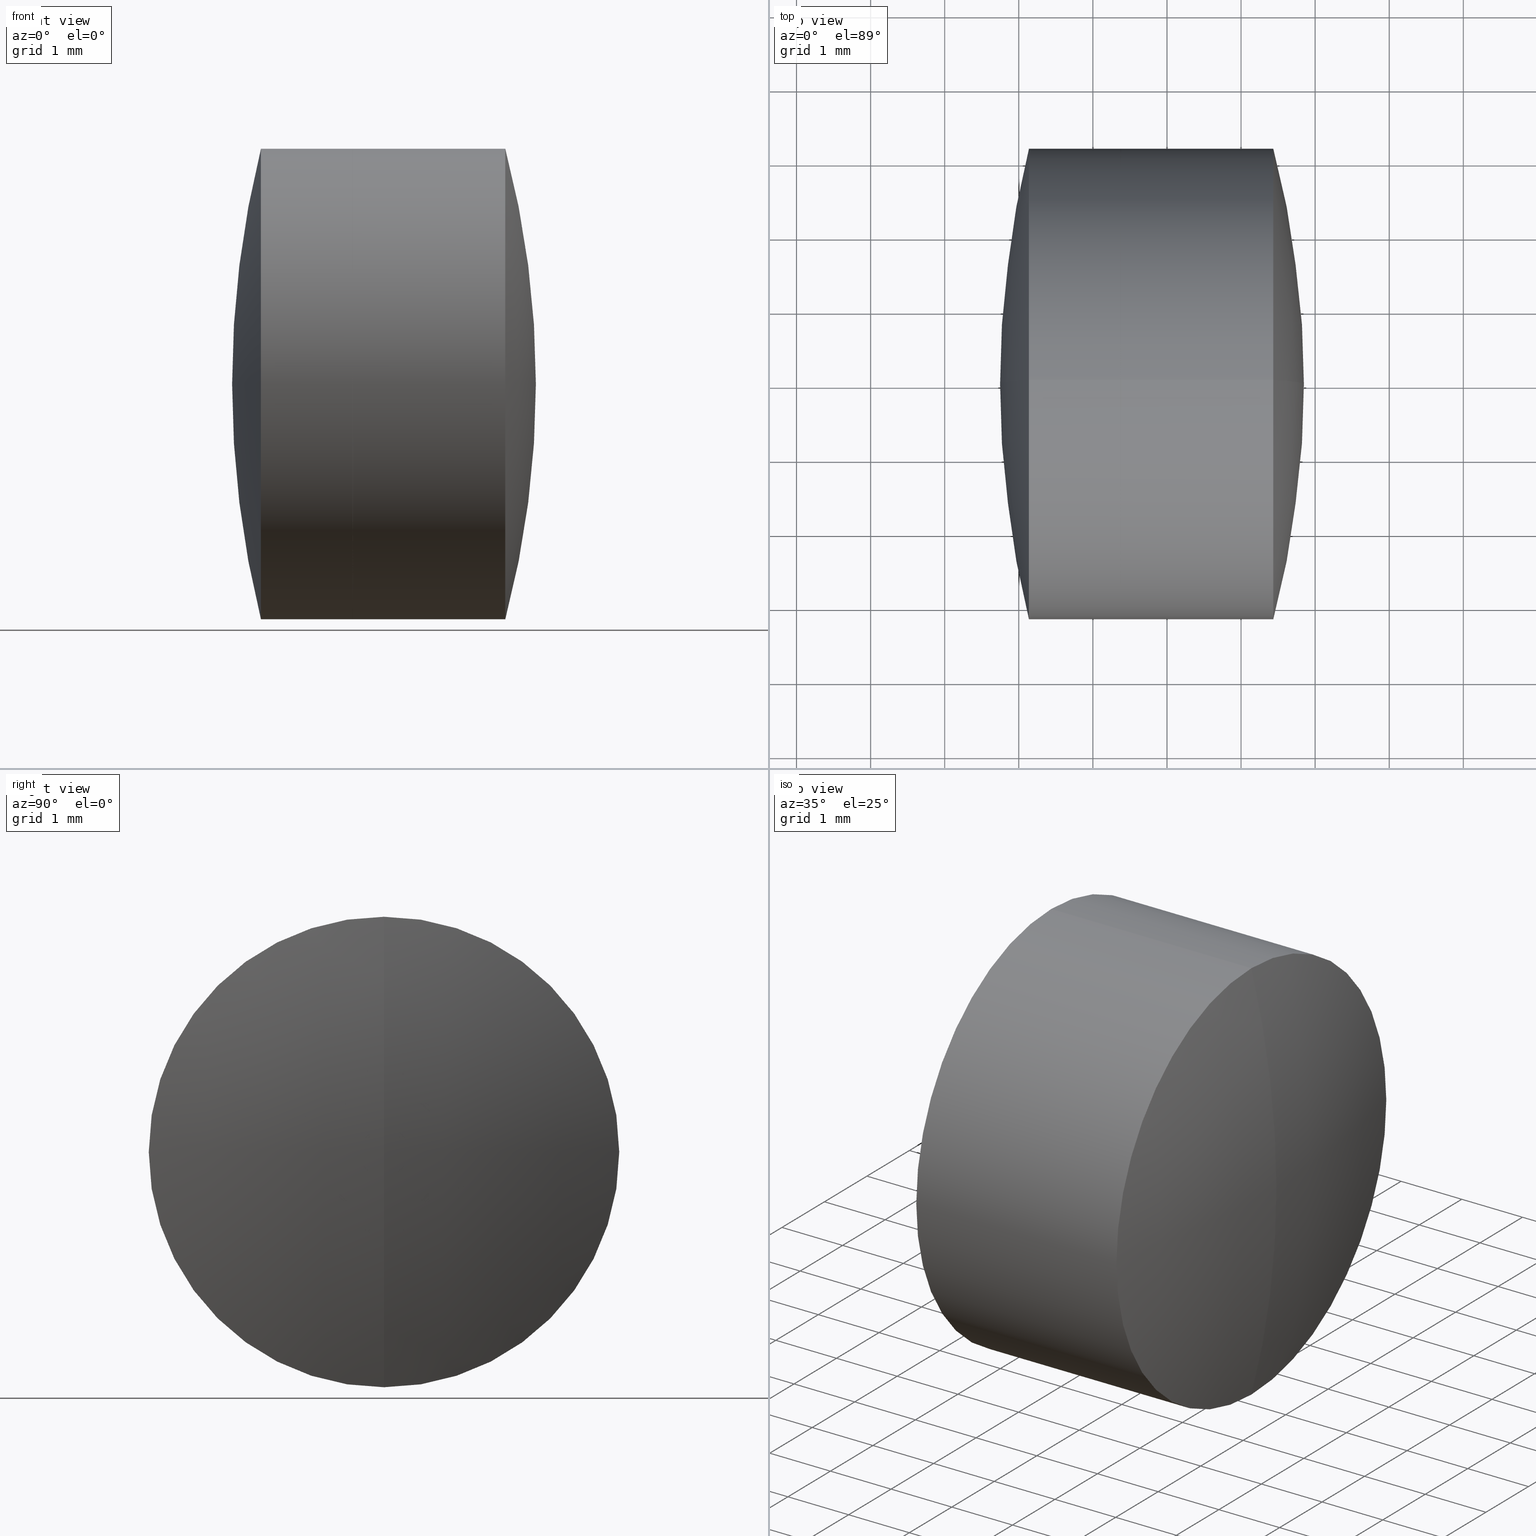
[diagram: canonical four-view strip — front | top / right | iso, engineering-drawing reading convention]
A machine part, canonical four-view strip (front | top / right | iso — engineering-drawing reading convention). The complete STEP part file that produces these views, byte-faithful:
ISO-10303-21;
HEADER;
FILE_DESCRIPTION (( 'STEP AP214' ),
    '1' );
FILE_NAME ('145148.STEP',
    '2019-06-06T03:25:14',
    ( 'user' ),
    ( '΢���й�' ),
    'SwSTEP 2.0',
    'SolidWorks 2016',
    '' );
FILE_SCHEMA (( 'AUTOMOTIVE_DESIGN' ));
ENDSEC;

DATA;
#1 = DIRECTION ( 'NONE',  ( -1.000000000000000000, -0.0000000000000000000, -0.0000000000000000000 ) ) ;
#2 = ORIENTED_EDGE ( 'NONE', *, *, #78, .T. ) ;
#3 = FACE_OUTER_BOUND ( 'NONE', #299, .T. ) ;
#4 = DIRECTION ( 'NONE',  ( 0.0000000000000000000, 1.224646799147353200E-016, -1.000000000000000000 ) ) ;
#5 = STYLED_ITEM ( 'NONE', ( #196 ), #304 ) ;
#6 = DIRECTION ( 'NONE',  ( 0.0000000000000000000, 0.0000000000000000000, -1.000000000000000000 ) ) ;
#7 =( NAMED_UNIT ( * ) SI_UNIT ( $, .STERADIAN. ) SOLID_ANGLE_UNIT ( ) );
#8 = ORIENTED_EDGE ( 'NONE', *, *, #219, .F. ) ;
#9 = PRODUCT_RELATED_PRODUCT_CATEGORY ( 'part', '', ( #214 ) ) ;
#10 = SURFACE_STYLE_FILL_AREA ( #305 ) ;
#11 =( GEOMETRIC_REPRESENTATION_CONTEXT ( 3 ) GLOBAL_UNCERTAINTY_ASSIGNED_CONTEXT ( ( #194 ) ) GLOBAL_UNIT_ASSIGNED_CONTEXT ( ( #347, #16, #185 ) ) REPRESENTATION_CONTEXT ( 'NONE', 'WORKASPACE' ) );
#12 = CARTESIAN_POINT ( 'NONE',  ( 2.377028588039097600, 0.0000000000000000000, 0.0000000000000000000 ) ) ;
#13 = DIRECTION ( 'NONE',  ( 0.0000000000000000000, 0.0000000000000000000, 1.000000000000000000 ) ) ;
#14 = SURFACE_STYLE_FILL_AREA ( #254 ) ;
#15 = UNCERTAINTY_MEASURE_WITH_UNIT (LENGTH_MEASURE( 1.000000000000000100E-005 ), #278, 'distance_accuracy_value', 'NONE');
#16 =( NAMED_UNIT ( * ) PLANE_ANGLE_UNIT ( ) SI_UNIT ( $, .RADIAN. ) );
#17 = ORIENTED_EDGE ( 'NONE', *, *, #302, .F. ) ;
#18 = AXIS2_PLACEMENT_3D ( 'NONE', #193, #184, #30 ) ;
#19 = ORIENTED_EDGE ( 'NONE', *, *, #106, .F. ) ;
#20 = EDGE_CURVE ( 'NONE', #328, #230, #121, .T. ) ;
#21 = CARTESIAN_POINT ( 'NONE',  ( 2.377028588039098900, 0.0000000000000000000, 0.0000000000000000000 ) ) ;
#22 = AXIS2_PLACEMENT_3D ( 'NONE', #153, #218, #152 ) ;
#23 = CYLINDRICAL_SURFACE ( 'NONE', #150, 3.174999999999998000 ) ;
#24 = DIRECTION ( 'NONE',  ( 0.0000000000000000000, 0.0000000000000000000, 1.000000000000000000 ) ) ;
#25 = DIRECTION ( 'NONE',  ( 0.0000000000000000000, 1.000000000000000000, -0.0000000000000000000 ) ) ;
#26 = ORIENTED_EDGE ( 'NONE', *, *, #290, .T. ) ;
#27 = EDGE_CURVE ( 'NONE', #258, #110, #319, .T. ) ;
#28 = SURFACE_SIDE_STYLE ('',( #10 ) ) ;
#29 = AXIS2_PLACEMENT_3D ( 'NONE', #12, #311, #42 ) ;
#30 = DIRECTION ( 'NONE',  ( 0.0000000000000000000, 0.0000000000000000000, -1.000000000000000000 ) ) ;
#31 = CARTESIAN_POINT ( 'NONE',  ( -7.572040515916890900, 0.0000000000000000000, 0.0000000000000000000 ) ) ;
#32 = SPHERICAL_SURFACE ( 'NONE', #310, 4.889999999999999700 ) ;
#33 = CARTESIAN_POINT ( 'NONE',  ( -0.5519199926577972300, 3.888253587292844600E-016, -3.174999999999998000 ) ) ;
#34 = PRODUCT_DEFINITION_FORMATION_WITH_SPECIFIED_SOURCE ( '�κ�', '', #214, .NOT_KNOWN. ) ;
#35 = FACE_OUTER_BOUND ( 'NONE', #129, .T. ) ;
#36 = ADVANCED_FACE ( 'NONE', ( #57 ), #182, .T. ) ;
#37 = DIRECTION ( 'NONE',  ( 0.0000000000000000000, 0.0000000000000000000, 1.000000000000000000 ) ) ;
#38 = FACE_OUTER_BOUND ( 'NONE', #337, .T. ) ;
#39 = CARTESIAN_POINT ( 'NONE',  ( 2.377028588039098900, 0.0000000000000000000, 0.0000000000000000000 ) ) ;
#40 = AXIS2_PLACEMENT_3D ( 'NONE', #269, #253, #248 ) ;
#41 = CARTESIAN_POINT ( 'NONE',  ( -0.8160621761658039000, 0.0000000000000000000, 0.0000000000000000000 ) ) ;
#42 = DIRECTION ( 'NONE',  ( 0.0000000000000000000, 0.0000000000000000000, 1.000000000000000000 ) ) ;
#43 = SURFACE_SIDE_STYLE ('',( #14 ) ) ;
#44 = ORIENTED_EDGE ( 'NONE', *, *, #302, .T. ) ;
#45 = ORIENTED_EDGE ( 'NONE', *, *, #245, .F. ) ;
#46 = DIRECTION ( 'NONE',  ( 0.0000000000000000000, 0.0000000000000000000, 1.000000000000000000 ) ) ;
#47 = AXIS2_PLACEMENT_3D ( 'NONE', #320, #179, #80 ) ;
#48 = EDGE_CURVE ( 'NONE', #178, #230, #75, .T. ) ;
#49 = ORIENTED_EDGE ( 'NONE', *, *, #217, .T. ) ;
#50 = CIRCLE ( 'NONE', #22, 4.889999999999999700 ) ;
#51 = DIRECTION ( 'NONE',  ( 0.0000000000000000000, 1.000000000000000000, 0.0000000000000000000 ) ) ;
#52 = CIRCLE ( 'NONE', #66, 3.174999999999998500 ) ;
#53 = ORIENTED_EDGE ( 'NONE', *, *, #154, .F. ) ;
#54 = DIRECTION ( 'NONE',  ( 0.0000000000000000000, 0.0000000000000000000, 1.000000000000000000 ) ) ;
#55 = DIRECTION ( 'NONE',  ( 0.0000000000000000000, 0.0000000000000000000, 1.000000000000000000 ) ) ;
#56 = ORIENTED_EDGE ( 'NONE', *, *, #134, .T. ) ;
#57 = FACE_OUTER_BOUND ( 'NONE', #215, .T. ) ;
#58 = EDGE_CURVE ( 'NONE', #145, #207, #192, .T. ) ;
#59 = CARTESIAN_POINT ( 'NONE',  ( -0.5519199926577972300, 0.0000000000000000000, 0.0000000000000000000 ) ) ;
#60 = CARTESIAN_POINT ( 'NONE',  ( 4.435281208764261700, 0.0000000000000000000, 0.0000000000000000000 ) ) ;
#61 = ORIENTED_EDGE ( 'NONE', *, *, #219, .T. ) ;
#62 = COLOUR_RGB ( '',1.000000000000000000, 1.000000000000000000, 1.000000000000000000 ) ;
#63 = SURFACE_STYLE_USAGE ( .BOTH. , #43 ) ;
#64 = ORIENTED_EDGE ( 'NONE', *, *, #27, .T. ) ;
#65 = PRESENTATION_STYLE_ASSIGNMENT (( #322 ) ) ;
#66 = AXIS2_PLACEMENT_3D ( 'NONE', #39, #89, #147 ) ;
#67 = DIRECTION ( 'NONE',  ( -1.000000000000000000, -0.0000000000000000000, -0.0000000000000000000 ) ) ;
#68 = ADVANCED_FACE ( 'NONE', ( #95 ), #263, .F. ) ;
#69 = CARTESIAN_POINT ( 'NONE',  ( -7.572040515916890900, 0.0000000000000000000, 0.0000000000000000000 ) ) ;
#70 = CARTESIAN_POINT ( 'NONE',  ( 2.377028588039097600, 0.0000000000000000000, 3.174999999999999800 ) ) ;
#71 = ORIENTED_EDGE ( 'NONE', *, *, #58, .F. ) ;
#72 = PRODUCT_DEFINITION ( 'δ֪', '', #34, #327 ) ;
#73 = DIRECTION ( 'NONE',  ( 0.0000000000000000000, 1.000000000000000000, 0.0000000000000000000 ) ) ;
#74 = ORIENTED_EDGE ( 'NONE', *, *, #245, .T. ) ;
#75 = CIRCLE ( 'NONE', #104, 4.889999999999999700 ) ;
#76 = MANIFOLD_SOLID_BREP ( '��ת2', #289 ) ;
#77 = AXIS2_PLACEMENT_3D ( 'NONE', #59, #167, #83 ) ;
#78 = EDGE_CURVE ( 'NONE', #230, #328, #135, .T. ) ;
#79 = ORIENTED_EDGE ( 'NONE', *, *, #134, .F. ) ;
#80 = DIRECTION ( 'NONE',  ( 0.0000000000000000000, 0.0000000000000000000, 1.000000000000000000 ) ) ;
#81 = DIRECTION ( 'NONE',  ( 0.0000000000000000000, 0.0000000000000000000, 1.000000000000000000 ) ) ;
#82 = AXIS2_PLACEMENT_3D ( 'NONE', #31, #210, #4 ) ;
#83 = DIRECTION ( 'NONE',  ( 0.0000000000000000000, 0.0000000000000000000, 1.000000000000000000 ) ) ;
#84 = ORIENTED_EDGE ( 'NONE', *, *, #27, .F. ) ;
#85 = ORIENTED_EDGE ( 'NONE', *, *, #20, .F. ) ;
#86 = CARTESIAN_POINT ( 'NONE',  ( 4.435281208764261700, 0.0000000000000000000, -3.175000000000001600 ) ) ;
#87 = ADVANCED_FACE ( 'NONE', ( #3 ), #331, .T. ) ;
#88 = CARTESIAN_POINT ( 'NONE',  ( 2.377028588039097600, 3.888253587292846100E-016, -3.174999999999999800 ) ) ;
#89 = DIRECTION ( 'NONE',  ( -1.000000000000000000, -0.0000000000000000000, -0.0000000000000000000 ) ) ;
#90 = VECTOR ( 'NONE', #344, 1000.000000000000000 ) ;
#91 = AXIS2_PLACEMENT_3D ( 'NONE', #257, #209, #204 ) ;
#92 = CARTESIAN_POINT ( 'NONE',  ( -0.8160621761658039000, 3.888253587292846100E-016, -3.174999999999999800 ) ) ;
#93 = CARTESIAN_POINT ( 'NONE',  ( 1.137008304801841300, 0.0000000000000000000, 0.0000000000000000000 ) ) ;
#94 = EDGE_LOOP ( 'NONE', ( #284, #49, #203 ) ) ;
#95 = FACE_OUTER_BOUND ( 'NONE', #281, .T. ) ;
#96 = MECHANICAL_DESIGN_GEOMETRIC_PRESENTATION_REPRESENTATION (  '', ( #131 ), #117 ) ;
#97 = CIRCLE ( 'NONE', #161, 3.174999999999999800 ) ;
#98 = CARTESIAN_POINT ( 'NONE',  ( 1.137008304801841300, 0.0000000000000000000, 0.0000000000000000000 ) ) ;
#99 = PRESENTATION_LAYER_ASSIGNMENT (  '', '', ( #131 ) ) ;
#100 = CARTESIAN_POINT ( 'NONE',  ( 4.435281208764261700, 0.0000000000000000000, 0.0000000000000000000 ) ) ;
#101 = VERTEX_POINT ( 'NONE', #125 ) ;
#102 = CIRCLE ( 'NONE', #282, 12.42000000000000000 ) ;
#103 = FACE_OUTER_BOUND ( 'NONE', #280, .T. ) ;
#104 = AXIS2_PLACEMENT_3D ( 'NONE', #301, #243, #303 ) ;
#105 = DIRECTION ( 'NONE',  ( 0.0000000000000000000, 1.000000000000000000, 0.0000000000000000000 ) ) ;
#106 = EDGE_CURVE ( 'NONE', #110, #330, #300, .T. ) ;
#107 =( LENGTH_UNIT ( ) NAMED_UNIT ( * ) SI_UNIT ( .MILLI., .METRE. ) );
#108 = DIRECTION ( 'NONE',  ( -0.0000000000000000000, -1.000000000000000000, -0.0000000000000000000 ) ) ;
#109 = AXIS2_PLACEMENT_3D ( 'NONE', #208, #51, #55 ) ;
#110 = VERTEX_POINT ( 'NONE', #190 ) ;
#111 = DIRECTION ( 'NONE',  ( 0.0000000000000000000, 0.0000000000000000000, -1.000000000000000000 ) ) ;
#112 = VECTOR ( 'NONE', #216, 1000.000000000000000 ) ;
#113 = DIRECTION ( 'NONE',  ( 0.0000000000000000000, 0.0000000000000000000, 1.000000000000000000 ) ) ;
#114 = DIRECTION ( 'NONE',  ( -1.000000000000000000, -0.0000000000000000000, -0.0000000000000000000 ) ) ;
#115 =( NAMED_UNIT ( * ) SI_UNIT ( $, .STERADIAN. ) SOLID_ANGLE_UNIT ( ) );
#116 = ORIENTED_EDGE ( 'NONE', *, *, #143, .F. ) ;
#117 =( GEOMETRIC_REPRESENTATION_CONTEXT ( 3 ) GLOBAL_UNCERTAINTY_ASSIGNED_CONTEXT ( ( #249 ) ) GLOBAL_UNIT_ASSIGNED_CONTEXT ( ( #309, #220, #268 ) ) REPRESENTATION_CONTEXT ( 'NONE', 'WORKASPACE' ) );
#118 = VERTEX_POINT ( 'NONE', #137 ) ;
#119 = DIRECTION ( 'NONE',  ( -1.000000000000000000, -0.0000000000000000000, -0.0000000000000000000 ) ) ;
#120 = EDGE_LOOP ( 'NONE', ( #266, #56, #148, #225 ) ) ;
#121 = CIRCLE ( 'NONE', #343, 3.174999999999999800 ) ;
#122 = STYLED_ITEM ( 'NONE', ( #65 ), #76 ) ;
#123 = ORIENTED_EDGE ( 'NONE', *, *, #48, .F. ) ;
#124 = APPLICATION_PROTOCOL_DEFINITION ( 'draft international standard', 'automotive_design', 1998, #265 ) ;
#125 = CARTESIAN_POINT ( 'NONE',  ( 3.547959484083109200, 0.0000000000000000000, -2.291877328756672900E-016 ) ) ;
#126 = LINE ( 'NONE', #260, #174 ) ;
#127 = CARTESIAN_POINT ( 'NONE',  ( 13.89795948408311000, 0.0000000000000000000, -4.034842405312186600E-017 ) ) ;
#128 = SURFACE_SIDE_STYLE ('',( #324 ) ) ;
#129 = EDGE_LOOP ( 'NONE', ( #8, #262, #85 ) ) ;
#130 = ORIENTED_EDGE ( 'NONE', *, *, #205, .T. ) ;
#131 = STYLED_ITEM ( 'NONE', ( #312 ), #166 ) ;
#132 = DIRECTION ( 'NONE',  ( 0.0000000000000000000, 0.0000000000000000000, -1.000000000000000000 ) ) ;
#133 = SPHERICAL_SURFACE ( 'NONE', #202, 12.42000000000000000 ) ;
#134 = EDGE_CURVE ( 'NONE', #330, #110, #285, .T. ) ;
#135 = CIRCLE ( 'NONE', #29, 3.174999999999999800 ) ;
#136 = FILL_AREA_STYLE_COLOUR ( '', #171 ) ;
#137 = CARTESIAN_POINT ( 'NONE',  ( 2.377028588039098900, 0.0000000000000000000, -3.174999999999998500 ) ) ;
#138 = DIRECTION ( 'NONE',  ( 0.0000000000000000000, 1.000000000000000000, -0.0000000000000000000 ) ) ;
#139 = AXIS2_PLACEMENT_3D ( 'NONE', #195, #25, #46 ) ;
#140 = EDGE_CURVE ( 'NONE', #330, #118, #273, .T. ) ;
#141 = FILL_AREA_STYLE ('',( #136 ) ) ;
#142 = ORIENTED_EDGE ( 'NONE', *, *, #321, .F. ) ;
#143 = EDGE_CURVE ( 'NONE', #110, #198, #126, .T. ) ;
#144 = DIRECTION ( 'NONE',  ( 0.0000000000000000000, 0.0000000000000000000, 1.000000000000000000 ) ) ;
#145 = VERTEX_POINT ( 'NONE', #339 ) ;
#146 = MECHANICAL_DESIGN_GEOMETRIC_PRESENTATION_REPRESENTATION (  '', ( #5 ), #11 ) ;
#147 = DIRECTION ( 'NONE',  ( 0.0000000000000000000, 0.0000000000000000000, 1.000000000000000000 ) ) ;
#148 = ORIENTED_EDGE ( 'NONE', *, *, #143, .T. ) ;
#149 = DIRECTION ( 'NONE',  ( -1.000000000000000000, -0.0000000000000000000, -0.0000000000000000000 ) ) ;
#150 = AXIS2_PLACEMENT_3D ( 'NONE', #288, #163, #24 ) ;
#151 = CARTESIAN_POINT ( 'NONE',  ( 2.377028588039097600, 0.0000000000000000000, 0.0000000000000000000 ) ) ;
#152 = DIRECTION ( 'NONE',  ( 0.0000000000000000000, 1.224646799147353200E-016, -1.000000000000000000 ) ) ;
#153 = CARTESIAN_POINT ( 'NONE',  ( -1.342040515916890000, 0.0000000000000000000, 7.023840951586055500E-017 ) ) ;
#154 = EDGE_CURVE ( 'NONE', #101, #198, #50, .T. ) ;
#155 = CIRCLE ( 'NONE', #293, 13.15000000000000000 ) ;
#156 = PRESENTATION_LAYER_ASSIGNMENT (  '', '', ( #5 ) ) ;
#157 = CARTESIAN_POINT ( 'NONE',  ( -1.342040515916890000, 0.0000000000000000000, 7.023840951586055500E-017 ) ) ;
#158 = ADVANCED_FACE ( 'NONE', ( #241 ), #252, .T. ) ;
#159 = ORIENTED_EDGE ( 'NONE', *, *, #78, .F. ) ;
#160 = ADVANCED_FACE ( 'NONE', ( #103 ), #164, .T. ) ;
#161 = AXIS2_PLACEMENT_3D ( 'NONE', #93, #119, #13 ) ;
#162 = DIRECTION ( 'NONE',  ( -1.000000000000000000, -0.0000000000000000000, -0.0000000000000000000 ) ) ;
#163 = DIRECTION ( 'NONE',  ( -1.000000000000000000, -0.0000000000000000000, -0.0000000000000000000 ) ) ;
#164 = CYLINDRICAL_SURFACE ( 'NONE', #47, 3.174999999999999800 ) ;
#165 = DIRECTION ( 'NONE',  ( -0.0000000000000000000, -1.000000000000000000, -0.0000000000000000000 ) ) ;
#166 = ADVANCED_BREP_SHAPE_REPRESENTATION ( '145148', ( #304, #76, #40 ), #169 ) ;
#167 = DIRECTION ( 'NONE',  ( -1.000000000000000000, -0.0000000000000000000, -0.0000000000000000000 ) ) ;
#168 = FACE_OUTER_BOUND ( 'NONE', #186, .T. ) ;
#169 =( GEOMETRIC_REPRESENTATION_CONTEXT ( 3 ) GLOBAL_UNCERTAINTY_ASSIGNED_CONTEXT ( ( #15 ) ) GLOBAL_UNIT_ASSIGNED_CONTEXT ( ( #278, #173, #7 ) ) REPRESENTATION_CONTEXT ( 'NONE', 'WORKASPACE' ) );
#170 = ORIENTED_EDGE ( 'NONE', *, *, #346, .T. ) ;
#171 = COLOUR_RGB ( '',1.000000000000000000, 1.000000000000000000, 1.000000000000000000 ) ;
#172 = CARTESIAN_POINT ( 'NONE',  ( 1.137008304801841600, 3.888253587292847100E-016, -3.175000000000000700 ) ) ;
#173 =( NAMED_UNIT ( * ) PLANE_ANGLE_UNIT ( ) SI_UNIT ( $, .RADIAN. ) );
#174 = VECTOR ( 'NONE', #67, 1000.000000000000000 ) ;
#175 = AXIS2_PLACEMENT_3D ( 'NONE', #98, #114, #180 ) ;
#176 = DIRECTION ( 'NONE',  ( 0.0000000000000000000, 0.0000000000000000000, 1.000000000000000000 ) ) ;
#177 = CIRCLE ( 'NONE', #139, 4.889999999999999700 ) ;
#178 = VERTEX_POINT ( 'NONE', #222 ) ;
#179 = DIRECTION ( 'NONE',  ( -1.000000000000000000, -0.0000000000000000000, -0.0000000000000000000 ) ) ;
#180 = DIRECTION ( 'NONE',  ( 0.0000000000000000000, 0.0000000000000000000, 1.000000000000000000 ) ) ;
#181 = ORIENTED_EDGE ( 'NONE', *, *, #292, .T. ) ;
#182 = CYLINDRICAL_SURFACE ( 'NONE', #77, 3.174999999999998000 ) ;
#183 = AXIS2_PLACEMENT_3D ( 'NONE', #157, #332, #6 ) ;
#184 = DIRECTION ( 'NONE',  ( -0.0000000000000000000, -1.000000000000000000, -0.0000000000000000000 ) ) ;
#185 =( NAMED_UNIT ( * ) SI_UNIT ( $, .STERADIAN. ) SOLID_ANGLE_UNIT ( ) );
#186 = EDGE_LOOP ( 'NONE', ( #53, #44, #26 ) ) ;
#187 = AXIS2_PLACEMENT_3D ( 'NONE', #240, #105, #113 ) ;
#188 = DIRECTION ( 'NONE',  ( -1.000000000000000000, -0.0000000000000000000, -0.0000000000000000000 ) ) ;
#189 = ADVANCED_FACE ( 'NONE', ( #38 ), #233, .T. ) ;
#190 = CARTESIAN_POINT ( 'NONE',  ( 4.435281208764261700, -3.888253587292849000E-016, 3.175000000000001600 ) ) ;
#191 = ORIENTED_EDGE ( 'NONE', *, *, #106, .T. ) ;
#192 = CIRCLE ( 'NONE', #175, 3.174999999999999800 ) ;
#193 = CARTESIAN_POINT ( 'NONE',  ( -1.342040515916890000, 0.0000000000000000000, 7.023840951586055500E-017 ) ) ;
#194 = UNCERTAINTY_MEASURE_WITH_UNIT (LENGTH_MEASURE( 1.000000000000000100E-005 ), #347, 'distance_accuracy_value', 'NONE');
#195 = CARTESIAN_POINT ( 'NONE',  ( -1.342040515916890000, 0.0000000000000000000, 7.023840951586055500E-017 ) ) ;
#196 = PRESENTATION_STYLE_ASSIGNMENT (( #279 ) ) ;
#197 = CARTESIAN_POINT ( 'NONE',  ( 13.89795948408311000, 0.0000000000000000000, -4.034842405312186600E-017 ) ) ;
#198 = VERTEX_POINT ( 'NONE', #244 ) ;
#199 = DIRECTION ( 'NONE',  ( 0.0000000000000000000, 1.000000000000000000, 0.0000000000000000000 ) ) ;
#200 = CARTESIAN_POINT ( 'NONE',  ( 4.847959484083109100, 0.0000000000000000000, -7.605056622705063600E-016 ) ) ;
#201 = EDGE_LOOP ( 'NONE', ( #123, #61, #159 ) ) ;
#202 = AXIS2_PLACEMENT_3D ( 'NONE', #307, #165, #132 ) ;
#203 = ORIENTED_EDGE ( 'NONE', *, *, #264, .T. ) ;
#204 = DIRECTION ( 'NONE',  ( 0.0000000000000000000, -1.224646799147353200E-016, 1.000000000000000000 ) ) ;
#205 = EDGE_CURVE ( 'NONE', #198, #118, #315, .T. ) ;
#206 = DIRECTION ( 'NONE',  ( 0.0000000000000000000, 0.0000000000000000000, 1.000000000000000000 ) ) ;
#207 = VERTEX_POINT ( 'NONE', #172 ) ;
#208 = CARTESIAN_POINT ( 'NONE',  ( -1.342040515916890000, 0.0000000000000000000, 7.023840951586055500E-017 ) ) ;
#209 = DIRECTION ( 'NONE',  ( -0.0000000000000000000, 1.000000000000000000, 1.224646799147353200E-016 ) ) ;
#210 = DIRECTION ( 'NONE',  ( 0.0000000000000000000, -1.000000000000000000, -1.224646799147353200E-016 ) ) ;
#211 = ORIENTED_EDGE ( 'NONE', *, *, #140, .T. ) ;
#212 = AXIS2_PLACEMENT_3D ( 'NONE', #197, #73, #54 ) ;
#213 = CARTESIAN_POINT ( 'NONE',  ( -0.8160621761658039000, 0.0000000000000000000, 3.174999999999999800 ) ) ;
#214 = PRODUCT ( '145148', '145148', '', ( #242 ) ) ;
#215 = EDGE_LOOP ( 'NONE', ( #191, #211, #221, #116 ) ) ;
#216 = DIRECTION ( 'NONE',  ( -1.000000000000000000, -0.0000000000000000000, -0.0000000000000000000 ) ) ;
#217 = EDGE_CURVE ( 'NONE', #207, #145, #97, .T. ) ;
#218 = DIRECTION ( 'NONE',  ( 0.0000000000000000000, -1.000000000000000000, -1.224646799147353200E-016 ) ) ;
#219 = EDGE_CURVE ( 'NONE', #178, #328, #306, .T. ) ;
#220 =( NAMED_UNIT ( * ) PLANE_ANGLE_UNIT ( ) SI_UNIT ( $, .RADIAN. ) );
#221 = ORIENTED_EDGE ( 'NONE', *, *, #205, .F. ) ;
#222 = CARTESIAN_POINT ( 'NONE',  ( 3.547959484083109200, 0.0000000000000000000, 3.696645519073884000E-016 ) ) ;
#223 = DIRECTION ( 'NONE',  ( -1.000000000000000000, -0.0000000000000000000, -0.0000000000000000000 ) ) ;
#224 = FILL_AREA_STYLE_COLOUR ( '', #62 ) ;
#225 = ORIENTED_EDGE ( 'NONE', *, *, #290, .F. ) ;
#226 = CARTESIAN_POINT ( 'NONE',  ( -1.342040515916890000, 0.0000000000000000000, 7.023840951586055500E-017 ) ) ;
#227 = FACE_OUTER_BOUND ( 'NONE', #120, .T. ) ;
#228 = UNCERTAINTY_MEASURE_WITH_UNIT (LENGTH_MEASURE( 1.000000000000000100E-005 ), #107, 'distance_accuracy_value', 'NONE');
#229 = AXIS2_PLACEMENT_3D ( 'NONE', #60, #1, #336 ) ;
#230 = VERTEX_POINT ( 'NONE', #70 ) ;
#231 = DIRECTION ( 'NONE',  ( -1.000000000000000000, -0.0000000000000000000, -0.0000000000000000000 ) ) ;
#232 = CARTESIAN_POINT ( 'NONE',  ( 0.7479594840831098600, 0.0000000000000000000, 7.648568463862628500E-016 ) ) ;
#233 = SPHERICAL_SURFACE ( 'NONE', #212, 13.15000000000000000 ) ;
#234 = APPLICATION_PROTOCOL_DEFINITION ( 'draft international standard', 'automotive_design', 1998, #235 ) ;
#235 = APPLICATION_CONTEXT ( 'automotive_design' ) ;
#236 = FACE_OUTER_BOUND ( 'NONE', #267, .T. ) ;
#237 = AXIS2_PLACEMENT_3D ( 'NONE', #21, #149, #81 ) ;
#238 = CARTESIAN_POINT ( 'NONE',  ( -7.572040515916890900, 0.0000000000000000000, 0.0000000000000000000 ) ) ;
#239 = ORIENTED_EDGE ( 'NONE', *, *, #321, .T. ) ;
#240 = CARTESIAN_POINT ( 'NONE',  ( 13.89795948408311000, 0.0000000000000000000, -4.034842405312186600E-017 ) ) ;
#241 = FACE_OUTER_BOUND ( 'NONE', #201, .T. ) ;
#242 = PRODUCT_CONTEXT ( 'NONE', #265, 'mechanical' ) ;
#243 = DIRECTION ( 'NONE',  ( 0.0000000000000000000, -1.000000000000000000, 0.0000000000000000000 ) ) ;
#244 = CARTESIAN_POINT ( 'NONE',  ( 2.377028588039098900, -3.888253587292845100E-016, 3.174999999999998500 ) ) ;
#245 = EDGE_CURVE ( 'NONE', #328, #207, #294, .T. ) ;
#246 = DIRECTION ( 'NONE',  ( 0.0000000000000000000, 0.0000000000000000000, 1.000000000000000000 ) ) ;
#247 = ORIENTED_EDGE ( 'NONE', *, *, #20, .T. ) ;
#248 = DIRECTION ( 'NONE',  ( 1.000000000000000000, 0.0000000000000000000, 0.0000000000000000000 ) ) ;
#249 = UNCERTAINTY_MEASURE_WITH_UNIT (LENGTH_MEASURE( 1.000000000000000100E-005 ), #309, 'distance_accuracy_value', 'NONE');
#250 = CARTESIAN_POINT ( 'NONE',  ( 13.89795948408311000, 0.0000000000000000000, -4.034842405312186600E-017 ) ) ;
#251 = ORIENTED_EDGE ( 'NONE', *, *, #217, .F. ) ;
#252 = SPHERICAL_SURFACE ( 'NONE', #109, 4.889999999999999700 ) ;
#253 = DIRECTION ( 'NONE',  ( 0.0000000000000000000, 0.0000000000000000000, 1.000000000000000000 ) ) ;
#254 = FILL_AREA_STYLE ('',( #323 ) ) ;
#255 = SPHERICAL_SURFACE ( 'NONE', #183, 4.889999999999999700 ) ;
#256 = LINE ( 'NONE', #213, #314 ) ;
#257 = CARTESIAN_POINT ( 'NONE',  ( -1.342040515916890000, 0.0000000000000000000, 7.023840951586055500E-017 ) ) ;
#258 = VERTEX_POINT ( 'NONE', #200 ) ;
#259 = PRESENTATION_LAYER_ASSIGNMENT (  '', '', ( #122 ) ) ;
#260 = CARTESIAN_POINT ( 'NONE',  ( -0.5519199926577972300, 0.0000000000000000000, 3.174999999999998000 ) ) ;
#261 = FACE_OUTER_BOUND ( 'NONE', #345, .T. ) ;
#262 = ORIENTED_EDGE ( 'NONE', *, *, #48, .T. ) ;
#263 = SPHERICAL_SURFACE ( 'NONE', #18, 4.889999999999999700 ) ;
#264 = EDGE_CURVE ( 'NONE', #145, #340, #155, .T. ) ;
#265 = APPLICATION_CONTEXT ( 'automotive_design' ) ;
#266 = ORIENTED_EDGE ( 'NONE', *, *, #140, .F. ) ;
#267 = EDGE_LOOP ( 'NONE', ( #84, #181, #19 ) ) ;
#268 =( NAMED_UNIT ( * ) SI_UNIT ( $, .STERADIAN. ) SOLID_ANGLE_UNIT ( ) );
#269 = CARTESIAN_POINT ( 'NONE',  ( 0.0000000000000000000, 0.0000000000000000000, 0.0000000000000000000 ) ) ;
#270 = SHAPE_DEFINITION_REPRESENTATION ( #295, #166 ) ;
#271 = ORIENTED_EDGE ( 'NONE', *, *, #58, .T. ) ;
#272 = ADVANCED_FACE ( 'NONE', ( #227 ), #23, .T. ) ;
#273 = LINE ( 'NONE', #33, #112 ) ;
#274 = AXIS2_PLACEMENT_3D ( 'NONE', #238, #108, #111 ) ;
#275 = DIRECTION ( 'NONE',  ( -0.0000000000000000000, 1.000000000000000000, 1.224646799147353200E-016 ) ) ;
#276 = SPHERICAL_SURFACE ( 'NONE', #274, 12.42000000000000000 ) ;
#277 = ADVANCED_FACE ( 'NONE', ( #35 ), #32, .T. ) ;
#278 =( LENGTH_UNIT ( ) NAMED_UNIT ( * ) SI_UNIT ( .MILLI., .METRE. ) );
#279 = SURFACE_STYLE_USAGE ( .BOTH. , #28 ) ;
#280 = EDGE_LOOP ( 'NONE', ( #45, #247, #239, #251 ) ) ;
#281 = EDGE_LOOP ( 'NONE', ( #17, #291, #130 ) ) ;
#282 = AXIS2_PLACEMENT_3D ( 'NONE', #69, #138, #176 ) ;
#283 = SPHERICAL_SURFACE ( 'NONE', #187, 13.15000000000000000 ) ;
#284 = ORIENTED_EDGE ( 'NONE', *, *, #346, .F. ) ;
#285 = CIRCLE ( 'NONE', #325, 3.174999999999998000 ) ;
#286 = DIRECTION ( 'NONE',  ( 0.0000000000000000000, -1.000000000000000000, 0.0000000000000000000 ) ) ;
#287 = FACE_OUTER_BOUND ( 'NONE', #94, .T. ) ;
#288 = CARTESIAN_POINT ( 'NONE',  ( -0.5519199926577972300, 0.0000000000000000000, 0.0000000000000000000 ) ) ;
#289 = CLOSED_SHELL ( 'NONE', ( #36, #326, #68, #334, #308, #272 ) ) ;
#290 = EDGE_CURVE ( 'NONE', #118, #198, #52, .T. ) ;
#291 = ORIENTED_EDGE ( 'NONE', *, *, #154, .T. ) ;
#292 = EDGE_CURVE ( 'NONE', #258, #330, #102, .T. ) ;
#293 = AXIS2_PLACEMENT_3D ( 'NONE', #250, #286, #335 ) ;
#294 = LINE ( 'NONE', #92, #90 ) ;
#295 = PRODUCT_DEFINITION_SHAPE ( 'NONE', 'NONE',  #72 ) ;
#296 = DIRECTION ( 'NONE',  ( 0.0000000000000000000, -1.224646799147353000E-016, 1.000000000000000000 ) ) ;
#297 =( NAMED_UNIT ( * ) PLANE_ANGLE_UNIT ( ) SI_UNIT ( $, .RADIAN. ) );
#298 = MECHANICAL_DESIGN_GEOMETRIC_PRESENTATION_REPRESENTATION (  '', ( #122 ), #316 ) ;
#299 = EDGE_LOOP ( 'NONE', ( #2, #74, #71, #142 ) ) ;
#300 = CIRCLE ( 'NONE', #229, 3.174999999999998000 ) ;
#301 = CARTESIAN_POINT ( 'NONE',  ( -1.342040515916890000, 0.0000000000000000000, 7.023840951586055500E-017 ) ) ;
#302 = EDGE_CURVE ( 'NONE', #101, #118, #177, .T. ) ;
#303 = DIRECTION ( 'NONE',  ( 0.0000000000000000000, 0.0000000000000000000, -1.000000000000000000 ) ) ;
#304 = MANIFOLD_SOLID_BREP ( '��ת1', #342 ) ;
#305 = FILL_AREA_STYLE ('',( #224 ) ) ;
#306 = CIRCLE ( 'NONE', #91, 4.889999999999999700 ) ;
#307 = CARTESIAN_POINT ( 'NONE',  ( -7.572040515916890900, 0.0000000000000000000, 0.0000000000000000000 ) ) ;
#308 = ADVANCED_FACE ( 'NONE', ( #236 ), #133, .T. ) ;
#309 =( LENGTH_UNIT ( ) NAMED_UNIT ( * ) SI_UNIT ( .MILLI., .METRE. ) );
#310 = AXIS2_PLACEMENT_3D ( 'NONE', #226, #199, #144 ) ;
#311 = DIRECTION ( 'NONE',  ( -1.000000000000000000, -0.0000000000000000000, -0.0000000000000000000 ) ) ;
#312 = PRESENTATION_STYLE_ASSIGNMENT (( #63 ) ) ;
#313 = ORIENTED_EDGE ( 'NONE', *, *, #292, .F. ) ;
#314 = VECTOR ( 'NONE', #188, 1000.000000000000000 ) ;
#315 = CIRCLE ( 'NONE', #237, 3.174999999999998500 ) ;
#316 =( GEOMETRIC_REPRESENTATION_CONTEXT ( 3 ) GLOBAL_UNCERTAINTY_ASSIGNED_CONTEXT ( ( #228 ) ) GLOBAL_UNIT_ASSIGNED_CONTEXT ( ( #107, #297, #115 ) ) REPRESENTATION_CONTEXT ( 'NONE', 'WORKASPACE' ) );
#317 = CIRCLE ( 'NONE', #338, 13.15000000000000000 ) ;
#318 = ORIENTED_EDGE ( 'NONE', *, *, #264, .F. ) ;
#319 = CIRCLE ( 'NONE', #82, 12.42000000000000000 ) ;
#320 = CARTESIAN_POINT ( 'NONE',  ( -0.8160621761658039000, 0.0000000000000000000, 0.0000000000000000000 ) ) ;
#321 = EDGE_CURVE ( 'NONE', #230, #145, #256, .T. ) ;
#322 = SURFACE_STYLE_USAGE ( .BOTH. , #128 ) ;
#323 = FILL_AREA_STYLE_COLOUR ( '', #341 ) ;
#324 = SURFACE_STYLE_FILL_AREA ( #141 ) ;
#325 = AXIS2_PLACEMENT_3D ( 'NONE', #100, #162, #246 ) ;
#326 = ADVANCED_FACE ( 'NONE', ( #261 ), #276, .T. ) ;
#327 = PRODUCT_DEFINITION_CONTEXT ( 'detailed design', #235, 'design' ) ;
#328 = VERTEX_POINT ( 'NONE', #88 ) ;
#329 = ADVANCED_FACE ( 'NONE', ( #287 ), #283, .T. ) ;
#330 = VERTEX_POINT ( 'NONE', #86 ) ;
#331 = CYLINDRICAL_SURFACE ( 'NONE', #333, 3.174999999999999800 ) ;
#332 = DIRECTION ( 'NONE',  ( -0.0000000000000000000, -1.000000000000000000, -0.0000000000000000000 ) ) ;
#333 = AXIS2_PLACEMENT_3D ( 'NONE', #41, #231, #37 ) ;
#334 = ADVANCED_FACE ( 'NONE', ( #168 ), #255, .F. ) ;
#335 = DIRECTION ( 'NONE',  ( 0.0000000000000000000, 0.0000000000000000000, -1.000000000000000000 ) ) ;
#336 = DIRECTION ( 'NONE',  ( 0.0000000000000000000, 0.0000000000000000000, 1.000000000000000000 ) ) ;
#337 = EDGE_LOOP ( 'NONE', ( #271, #170, #318 ) ) ;
#338 = AXIS2_PLACEMENT_3D ( 'NONE', #127, #275, #296 ) ;
#339 = CARTESIAN_POINT ( 'NONE',  ( 1.137008304801841600, 0.0000000000000000000, 3.175000000000000700 ) ) ;
#340 = VERTEX_POINT ( 'NONE', #232 ) ;
#341 = COLOUR_RGB ( '',1.000000000000000000, 1.000000000000000000, 1.000000000000000000 ) ;
#342 = CLOSED_SHELL ( 'NONE', ( #158, #87, #189, #329, #160, #277 ) ) ;
#343 = AXIS2_PLACEMENT_3D ( 'NONE', #151, #223, #206 ) ;
#344 = DIRECTION ( 'NONE',  ( -1.000000000000000000, -0.0000000000000000000, -0.0000000000000000000 ) ) ;
#345 = EDGE_LOOP ( 'NONE', ( #313, #64, #79 ) ) ;
#346 = EDGE_CURVE ( 'NONE', #207, #340, #317, .T. ) ;
#347 =( LENGTH_UNIT ( ) NAMED_UNIT ( * ) SI_UNIT ( .MILLI., .METRE. ) );
ENDSEC;
END-ISO-10303-21;
